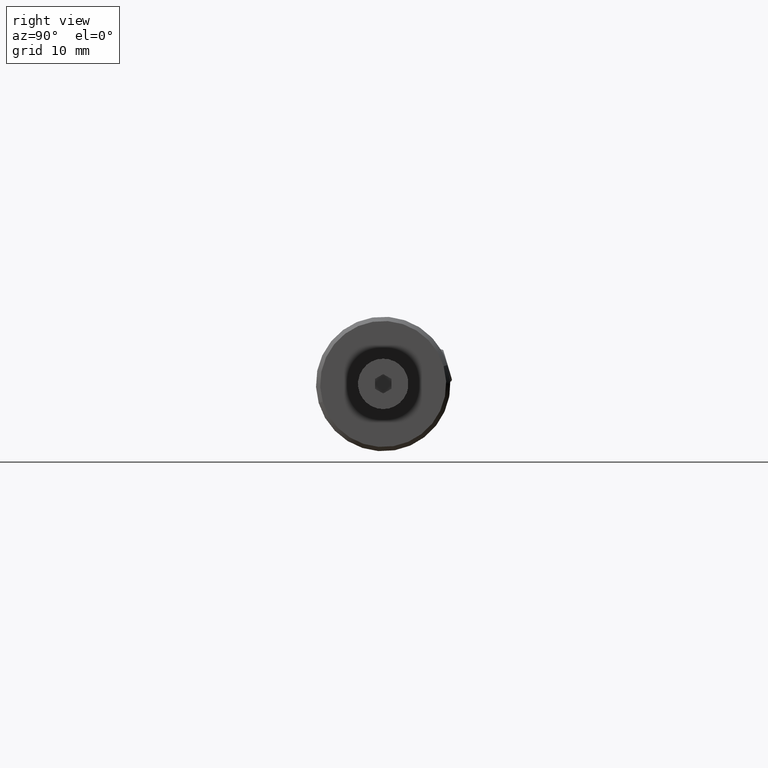
[diagram: clean part render]
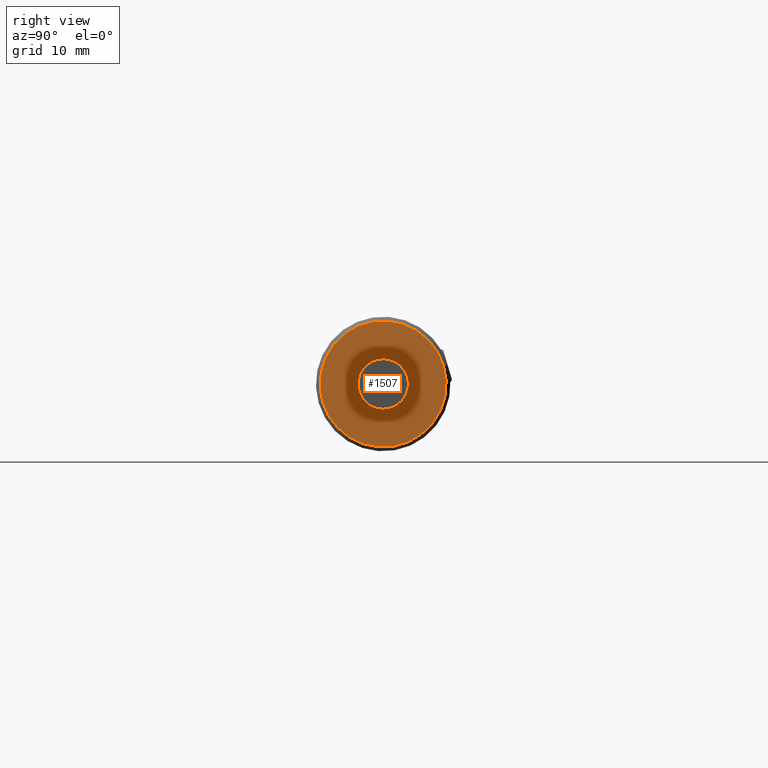
[diagram: same view with one face highlighted and labeled with its STEP entity id]
A machine part, right view. The second image highlights one B-rep face of the part: STEP entity #1507.
In plain terms, the highlighted planar face has unit normal (-1, -0, 0).
Its self-contained STEP definition (entity closure, byte-faithful):
#14 = DIRECTION ( 'NONE',  ( 0.000000000000000000, -0.9592565708293433469, -0.2825364247680801078 ) ) ;
#19 = CARTESIAN_POINT ( 'NONE',  ( 4.950000000000000178, 7.194424281220070050, 2.119023185760599226 ) ) ;
#50 = AXIS2_PLACEMENT_3D ( 'NONE', #1998, #268, #144 ) ;
#72 = EDGE_LOOP ( 'NONE', ( #957, #1343 ) ) ;
#116 = DIRECTION ( 'NONE',  ( 0.000000000000000000, -0.9592565708293433469, -0.2825364247680801078 ) ) ;
#144 = DIRECTION ( 'NONE',  ( 0.000000000000000000, -0.9592565708293433469, -0.2825364247680801078 ) ) ;
#179 = CARTESIAN_POINT ( 'NONE',  ( 4.950000000000000178, -7.194424281220071826, -2.119023185760600114 ) ) ;
#189 = CARTESIAN_POINT ( 'NONE',  ( 4.950000000000000178, 2.877769712488015497, 0.8476092743042354938 ) ) ;
#240 = VERTEX_POINT ( 'NONE', #179 ) ;
#268 = DIRECTION ( 'NONE',  ( -1.000000000000000000, -0.000000000000000000, 0.000000000000000000 ) ) ;
#421 = AXIS2_PLACEMENT_3D ( 'NONE', #1798, #735, #116 ) ;
#423 = DIRECTION ( 'NONE',  ( 0.000000000000000000, -0.9592565708293433469, -0.2825364247680801078 ) ) ;
#470 = ORIENTED_EDGE ( 'NONE', *, *, #1029, .T. ) ;
#559 = CIRCLE ( 'NONE', #1536, 7.499999999999995559 ) ;
#563 = CARTESIAN_POINT ( 'NONE',  ( 4.950000000000000178, -5.426736848533666609E-16, -7.892009290543411720E-16 ) ) ;
#585 = DIRECTION ( 'NONE',  ( -1.000000000000000000, 0.000000000000000000, 0.000000000000000000 ) ) ;
#601 = EDGE_CURVE ( 'NONE', #240, #1087, #1558, .T. ) ;
#661 = ORIENTED_EDGE ( 'NONE', *, *, #1621, .T. ) ;
#726 = VERTEX_POINT ( 'NONE', #1181 ) ;
#735 = DIRECTION ( 'NONE',  ( -1.000000000000000000, 0.000000000000000000, 0.000000000000000000 ) ) ;
#768 = DIRECTION ( 'NONE',  ( 1.000000000000000000, -0.000000000000000000, -0.000000000000000000 ) ) ;
#777 = CIRCLE ( 'NONE', #917, 2.999999999999985789 ) ;
#875 = FACE_BOUND ( 'NONE', #1296, .T. ) ;
#917 = AXIS2_PLACEMENT_3D ( 'NONE', #1063, #585, #423 ) ;
#957 = ORIENTED_EDGE ( 'NONE', *, *, #601, .T. ) ;
#1029 = EDGE_CURVE ( 'NONE', #726, #1280, #1397, .T. ) ;
#1063 = CARTESIAN_POINT ( 'NONE',  ( 4.950000000000000178, -5.426736848533666609E-16, -7.892009290543411720E-16 ) ) ;
#1087 = VERTEX_POINT ( 'NONE', #19 ) ;
#1142 = AXIS2_PLACEMENT_3D ( 'NONE', #563, #1221, #1191 ) ;
#1181 = CARTESIAN_POINT ( 'NONE',  ( 4.950000000000000178, -2.877769712488016385, -0.8476092743042366040 ) ) ;
#1191 = DIRECTION ( 'NONE',  ( 0.000000000000000000, -0.9592565708293433469, -0.2825364247680801078 ) ) ;
#1221 = DIRECTION ( 'NONE',  ( 1.000000000000000000, -0.000000000000000000, -0.000000000000000000 ) ) ;
#1280 = VERTEX_POINT ( 'NONE', #189 ) ;
#1296 = EDGE_LOOP ( 'NONE', ( #661, #470 ) ) ;
#1343 = ORIENTED_EDGE ( 'NONE', *, *, #1984, .T. ) ;
#1397 = CIRCLE ( 'NONE', #421, 2.999999999999985789 ) ;
#1498 = FACE_OUTER_BOUND ( 'NONE', #72, .T. ) ;
#1507 = ADVANCED_FACE ( 'NONE', ( #875, #1498 ), #1662, .F. ) ;
#1536 = AXIS2_PLACEMENT_3D ( 'NONE', #1548, #768, #14 ) ;
#1548 = CARTESIAN_POINT ( 'NONE',  ( 4.950000000000000178, -5.426736848533666609E-16, -7.892009290543411720E-16 ) ) ;
#1558 = CIRCLE ( 'NONE', #1142, 7.499999999999995559 ) ;
#1621 = EDGE_CURVE ( 'NONE', #1280, #726, #777, .T. ) ;
#1662 = PLANE ( 'NONE',  #50 ) ;
#1798 = CARTESIAN_POINT ( 'NONE',  ( 4.950000000000000178, -5.426736848533666609E-16, -7.892009290543411720E-16 ) ) ;
#1984 = EDGE_CURVE ( 'NONE', #1087, #240, #559, .T. ) ;
#1998 = CARTESIAN_POINT ( 'NONE',  ( 4.950000000000000178, -5.426736848533666609E-16, -7.892009290543411720E-16 ) ) ;